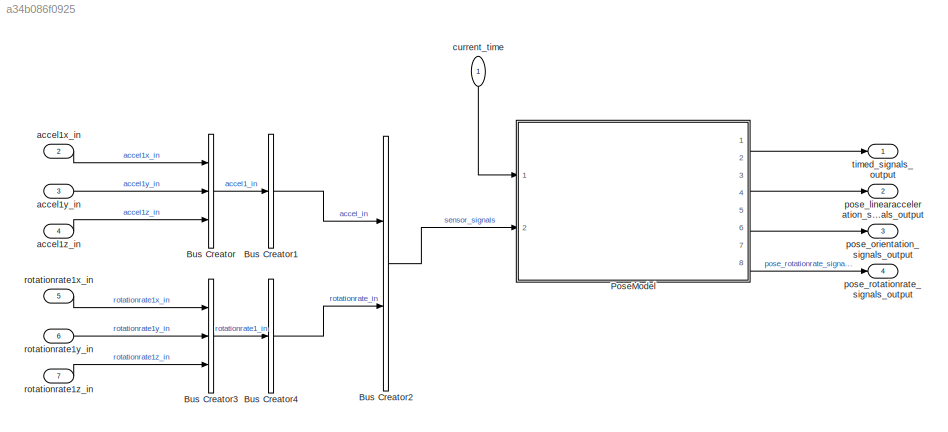
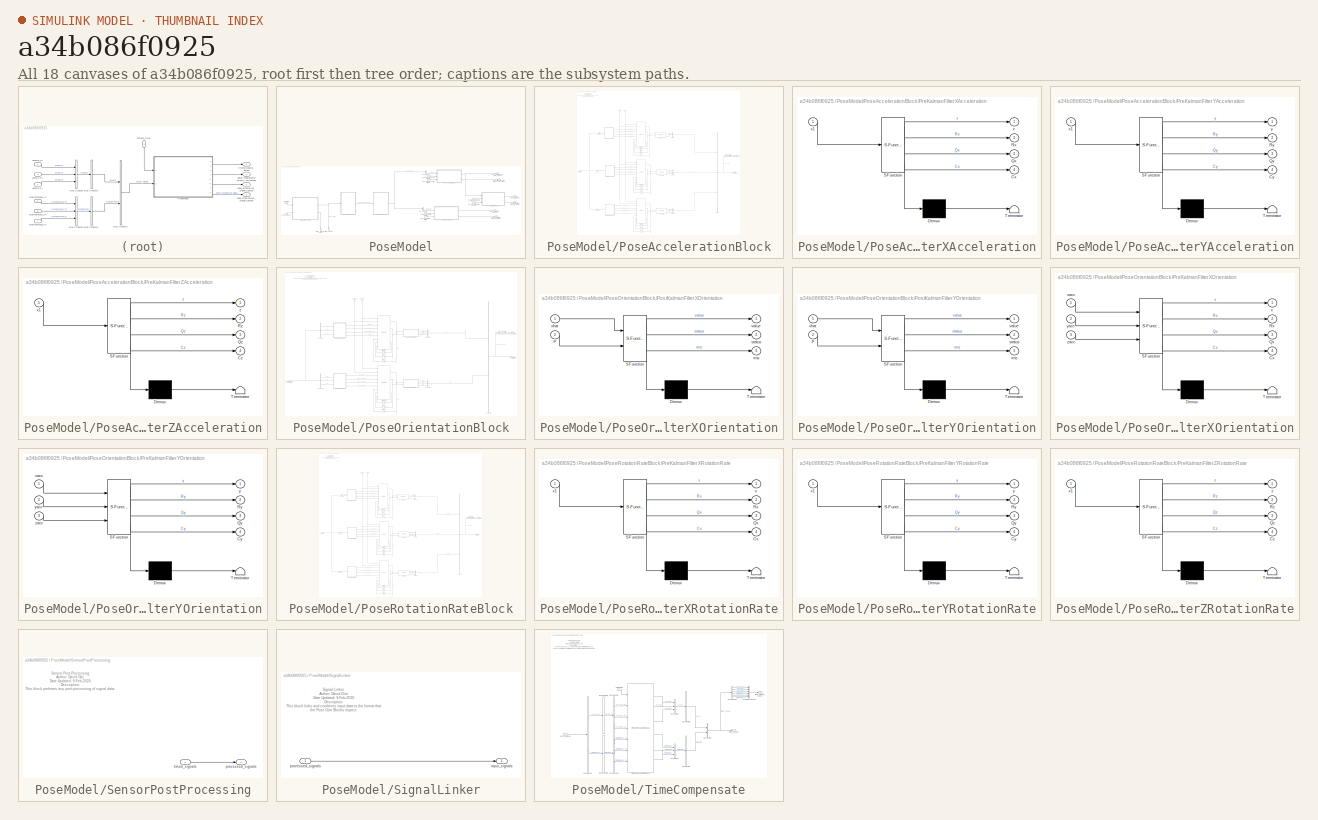
[diagram: thumbnail index - all 18 canvases of the model, root first then tree order]
MODEL slx_a34b086f0925
KIND model
CONFIG AbsTol = auto
CONFIG EnableMultiTasking = off
CONFIG FixedStep = auto
CONFIG MaxStep = auto
CONFIG MinStep = auto
CONFIG RelTol = 1e-3
CONFIG SampleTimeConstraint = Unconstrained
CONFIG Solver = FixedStepDiscrete
CONFIG SolverName = FixedStepDiscrete
CONFIG StartTime = 0.0
CONFIG StopTime = 10.0
BLOCK [BusCreator] Bus Creator
  DisplayOption = bar
  InheritFromInputs = on
  Inputs = 3
  Ports = [3, 1]
BLOCK [BusCreator] Bus Creator1
  DisplayOption = bar
  InheritFromInputs = on
  Inputs = 1
  Ports = [1, 1]
BLOCK [BusCreator] Bus Creator2
  DisplayOption = bar
  InheritFromInputs = on
  Inputs = 2
  Ports = [2, 1]
BLOCK [BusCreator] Bus Creator3
  DisplayOption = bar
  InheritFromInputs = on
  Inputs = 3
  Ports = [3, 1]
BLOCK [BusCreator] Bus Creator4
  DisplayOption = bar
  InheritFromInputs = on
  Inputs = 1
  Ports = [1, 1]
BLOCK [SubSystem] PoseModel
  AncestorBlock = posemodel/PoseModel
  Ports = [2, 8]
  RequestExecContextInheritance = off
BLOCK [BusSelector] PoseModel/Bus Selector
  OutputAsBus = off
  OutputSignals = accel
  Ports = [1, 1]
BLOCK [BusSelector] PoseModel/Bus Selector1
  OutputAsBus = off
  OutputSignals = rotationrate
  Ports = [1, 1]
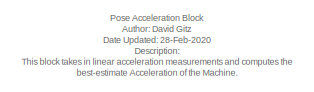
[diagram: PoseModel/PoseAccelerationBlock - part 1/10, top left region]
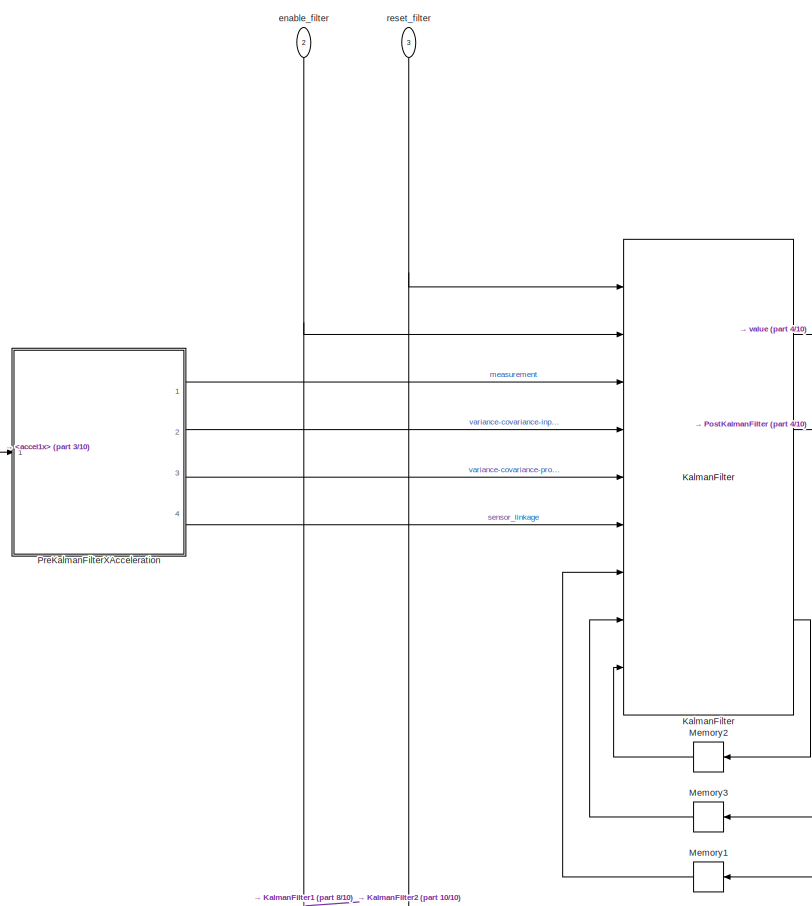
[diagram: PoseModel/PoseAccelerationBlock - part 2/10, top left region]
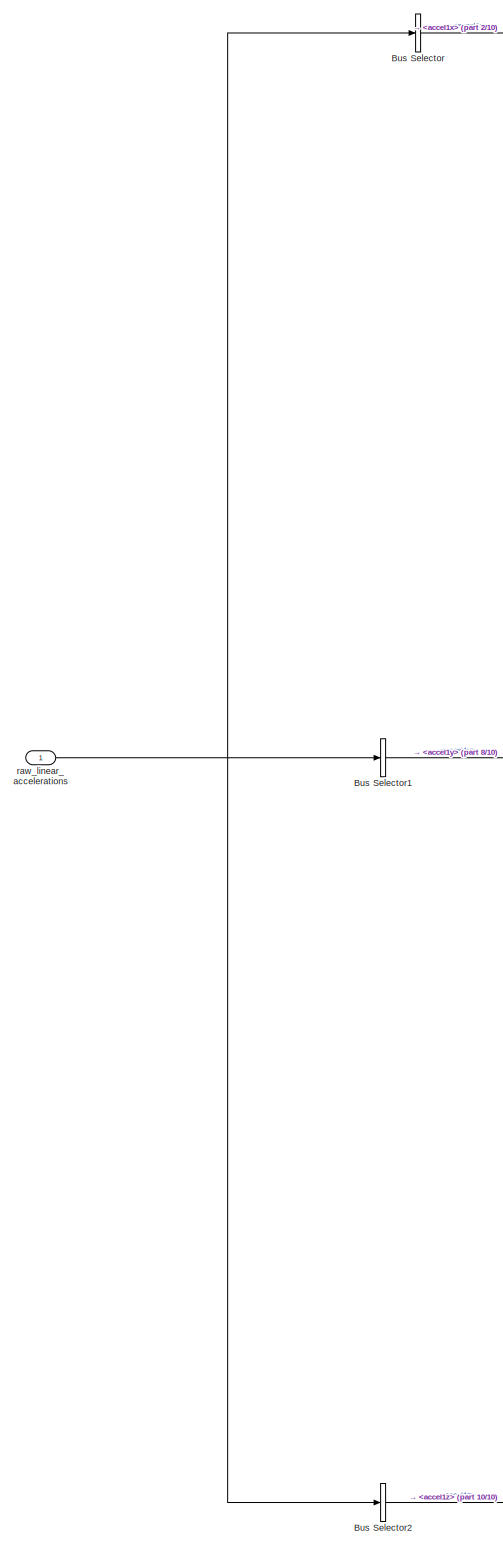
[diagram: PoseModel/PoseAccelerationBlock - part 3/10, middle left region]
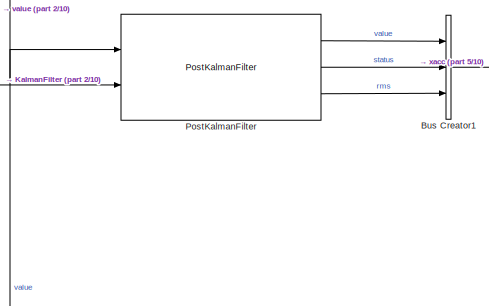
[diagram: PoseModel/PoseAccelerationBlock - part 4/10, central region]
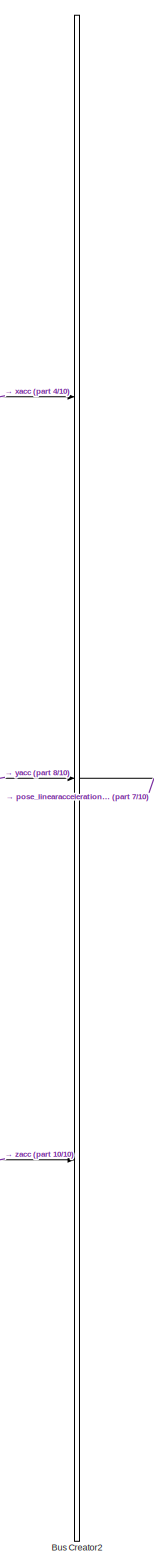
[diagram: PoseModel/PoseAccelerationBlock - part 5/10, middle right region]
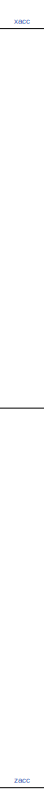
[diagram: PoseModel/PoseAccelerationBlock - part 6/10, middle right region]
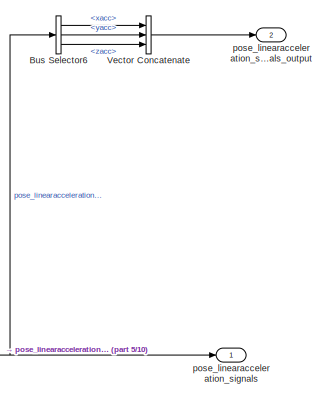
[diagram: PoseModel/PoseAccelerationBlock - part 7/10, middle right region]
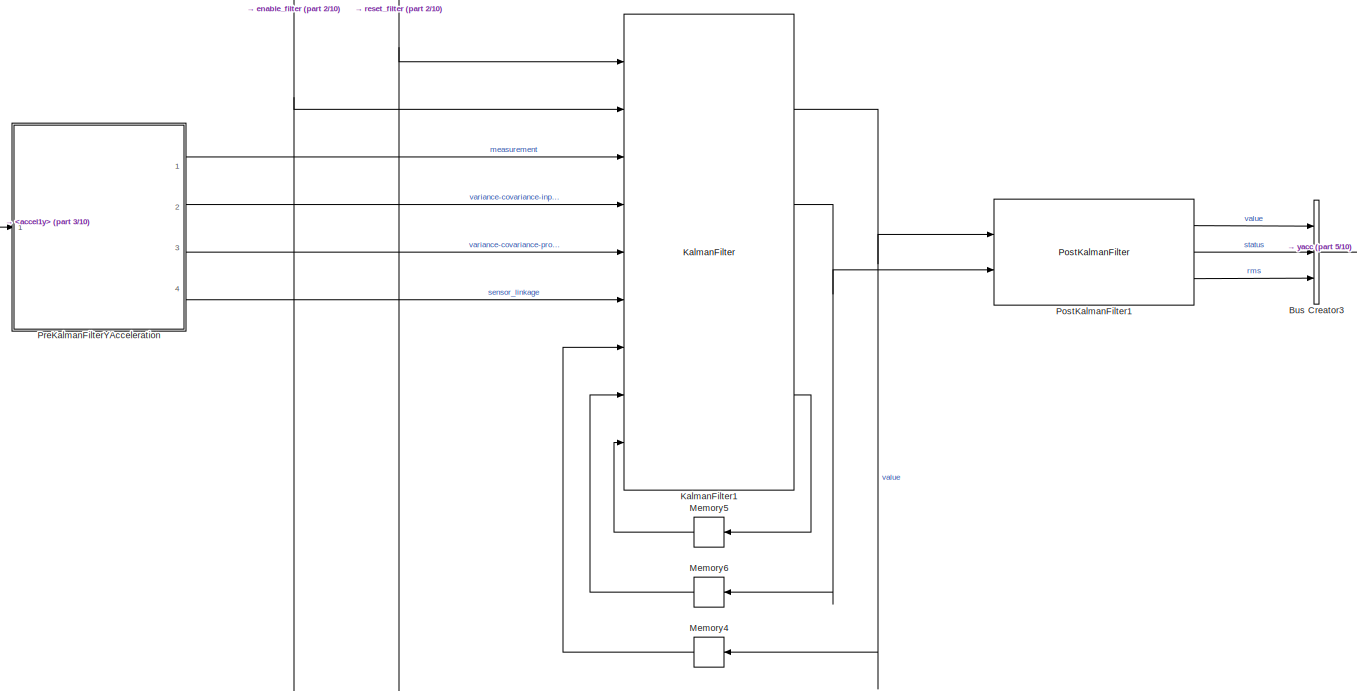
[diagram: PoseModel/PoseAccelerationBlock - part 8/10, central region]
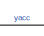
[diagram: PoseModel/PoseAccelerationBlock - part 9/10, middle right region]
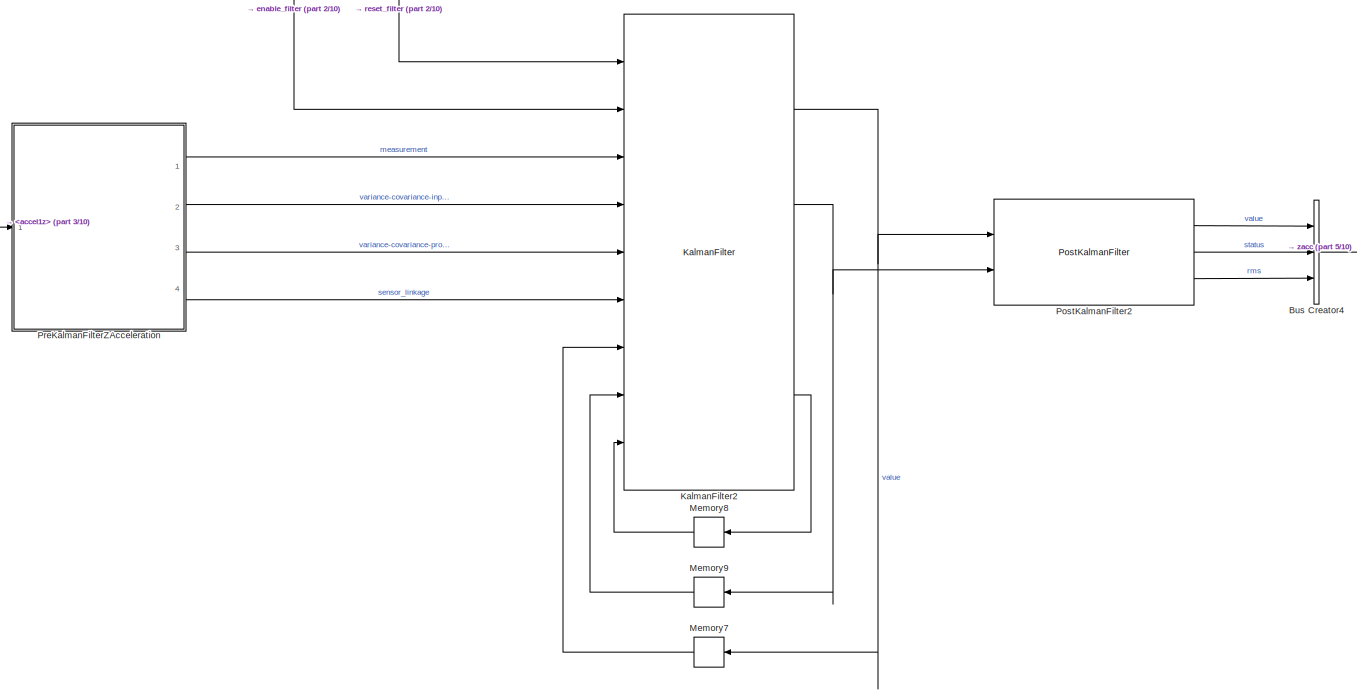
[diagram: PoseModel/PoseAccelerationBlock - part 10/10, bottom center region]
BLOCK [SubSystem] PoseModel/PoseAccelerationBlock
  Ports = [3, 2]
  RequestExecContextInheritance = off
BLOCK [BusCreator] PoseModel/PoseAccelerationBlock/Bus Creator1
  DisplayOption = bar
  InheritFromInputs = on
  Inputs = 3
  NonVirtualBus = on
  OutDataTypeStr = Bus: OutputSignalObject
  Ports = [3, 1]
BLOCK [BusCreator] PoseModel/PoseAccelerationBlock/Bus Creator2
  DisplayOption = bar
  InheritFromInputs = on
  Inputs = 3
  Ports = [3, 1]
BLOCK [BusCreator] PoseModel/PoseAccelerationBlock/Bus Creator3
  DisplayOption = bar
  InheritFromInputs = on
  Inputs = 3
  NonVirtualBus = on
  OutDataTypeStr = Bus: OutputSignalObject
  Ports = [3, 1]
BLOCK [BusCreator] PoseModel/PoseAccelerationBlock/Bus Creator4
  DisplayOption = bar
  InheritFromInputs = on
  Inputs = 3
  NonVirtualBus = on
  OutDataTypeStr = Bus: OutputSignalObject
  Ports = [3, 1]
BLOCK [BusSelector] PoseModel/PoseAccelerationBlock/Bus Selector
  OutputAsBus = off
  OutputSignals = accel1.accel1x
  Ports = [1, 1]
BLOCK [BusSelector] PoseModel/PoseAccelerationBlock/Bus Selector1
  OutputAsBus = off
  OutputSignals = accel1.accel1y
  Ports = [1, 1]
BLOCK [BusSelector] PoseModel/PoseAccelerationBlock/Bus Selector2
  OutputAsBus = off
  OutputSignals = accel1.accel1z
  Ports = [1, 1]
BLOCK [BusSelector] PoseModel/PoseAccelerationBlock/Bus Selector6
  OutputAsBus = off
  OutputSignals = xacc,yacc,zacc
  Ports = [1, 3]
BLOCK [Reference] PoseModel/PoseAccelerationBlock/KalmanFilter  REF=posefilter/KalmanFilter  (lib defined in slx_956faf5b2c37)
  Ports = [9, 4]
  SourceBlock = posefilter/KalmanFilter
  SourceProductName = Pose Filter Library
  SourceType = SubSystem
BLOCK [Reference] PoseModel/PoseAccelerationBlock/KalmanFilter1  REF=posefilter/KalmanFilter  (lib defined in slx_956faf5b2c37)
  Ports = [9, 4]
  SourceBlock = posefilter/KalmanFilter
  SourceProductName = Pose Filter Library
  SourceType = SubSystem
BLOCK [Reference] PoseModel/PoseAccelerationBlock/KalmanFilter2  REF=posefilter/KalmanFilter  (lib defined in slx_956faf5b2c37)
  Ports = [9, 4]
  SourceBlock = posefilter/KalmanFilter
  SourceProductName = Pose Filter Library
  SourceType = SubSystem
BLOCK [Memory] PoseModel/PoseAccelerationBlock/Memory1
BLOCK [Memory] PoseModel/PoseAccelerationBlock/Memory2
BLOCK [Memory] PoseModel/PoseAccelerationBlock/Memory3
BLOCK [Memory] PoseModel/PoseAccelerationBlock/Memory4
BLOCK [Memory] PoseModel/PoseAccelerationBlock/Memory5
BLOCK [Memory] PoseModel/PoseAccelerationBlock/Memory6
BLOCK [Memory] PoseModel/PoseAccelerationBlock/Memory7
BLOCK [Memory] PoseModel/PoseAccelerationBlock/Memory8
BLOCK [Memory] PoseModel/PoseAccelerationBlock/Memory9
BLOCK [Reference] PoseModel/PoseAccelerationBlock/PostKalmanFilter  REF=posefilter/PostKalmanFilter  (lib defined in slx_956faf5b2c37)
  Ports = [2, 3]
  SourceBlock = posefilter/PostKalmanFilter
  SourceProductName = Pose Filter Library
  SourceType = SubSystem
BLOCK [Reference] PoseModel/PoseAccelerationBlock/PostKalmanFilter1  REF=posefilter/PostKalmanFilter  (lib defined in slx_956faf5b2c37)
  Ports = [2, 3]
  SourceBlock = posefilter/PostKalmanFilter
  SourceProductName = Pose Filter Library
  SourceType = SubSystem
BLOCK [Reference] PoseModel/PoseAccelerationBlock/PostKalmanFilter2  REF=posefilter/PostKalmanFilter  (lib defined in slx_956faf5b2c37)
  Ports = [2, 3]
  SourceBlock = posefilter/PostKalmanFilter
  SourceProductName = Pose Filter Library
  SourceType = SubSystem
BLOCK [SubSystem] PoseModel/PoseAccelerationBlock/PreKalmanFilterXAcceleration
  ErrorFcn = Stateflow.Translate.translate
  PermitHierarchicalResolution = ExplicitOnly
  Ports = [1, 4]
  RequestExecContextInheritance = off
  SFBlockType = MATLAB Function
  TreatAsAtomicUnit = on
BLOCK [Demux] PoseModel/PoseAccelerationBlock/PreKalmanFilterXAcceleration/ Demux 
  Outputs = 1
  Ports = [1, 1]
BLOCK [S-Function] PoseModel/PoseAccelerationBlock/PreKalmanFilterXAcceleration/ SFunction 
  EnableBusSupport = on
  FunctionName = sf_sfun
  PortCounts = [1 5]
  Ports = [1, 5]
  SFcnIsStateOwnerBlock = off
  SFunctionDeploymentMode = off
  Tag = Stateflow S-Function 3
BLOCK [Terminator] PoseModel/PoseAccelerationBlock/PreKalmanFilterXAcceleration/ Terminator 
BLOCK [Outport] PoseModel/PoseAccelerationBlock/PreKalmanFilterXAcceleration/Cx
  IconDisplay = Port number
  Port = 4
BLOCK [Outport] PoseModel/PoseAccelerationBlock/PreKalmanFilterXAcceleration/Qx
  IconDisplay = Port number
  Port = 3
BLOCK [Outport] PoseModel/PoseAccelerationBlock/PreKalmanFilterXAcceleration/Rx
  IconDisplay = Port number
  Port = 2
BLOCK [Outport] PoseModel/PoseAccelerationBlock/PreKalmanFilterXAcceleration/x
  IconDisplay = Port number
BLOCK [Inport] PoseModel/PoseAccelerationBlock/PreKalmanFilterXAcceleration/x1
  IconDisplay = Port number
BLOCK [SubSystem] PoseModel/PoseAccelerationBlock/PreKalmanFilterYAcceleration
  ErrorFcn = Stateflow.Translate.translate
  PermitHierarchicalResolution = ExplicitOnly
  Ports = [1, 4]
  RequestExecContextInheritance = off
  SFBlockType = MATLAB Function
  TreatAsAtomicUnit = on
BLOCK [Demux] PoseModel/PoseAccelerationBlock/PreKalmanFilterYAcceleration/ Demux 
  Outputs = 1
  Ports = [1, 1]
BLOCK [S-Function] PoseModel/PoseAccelerationBlock/PreKalmanFilterYAcceleration/ SFunction 
  EnableBusSupport = on
  FunctionName = sf_sfun
  PortCounts = [1 5]
  Ports = [1, 5]
  SFcnIsStateOwnerBlock = off
  SFunctionDeploymentMode = off
  Tag = Stateflow S-Function 4
BLOCK [Terminator] PoseModel/PoseAccelerationBlock/PreKalmanFilterYAcceleration/ Terminator 
BLOCK [Outport] PoseModel/PoseAccelerationBlock/PreKalmanFilterYAcceleration/Cy
  IconDisplay = Port number
  Port = 4
BLOCK [Outport] PoseModel/PoseAccelerationBlock/PreKalmanFilterYAcceleration/Qy
  IconDisplay = Port number
  Port = 3
BLOCK [Outport] PoseModel/PoseAccelerationBlock/PreKalmanFilterYAcceleration/Ry
  IconDisplay = Port number
  Port = 2
BLOCK [Inport] PoseModel/PoseAccelerationBlock/PreKalmanFilterYAcceleration/x1
  IconDisplay = Port number
BLOCK [Outport] PoseModel/PoseAccelerationBlock/PreKalmanFilterYAcceleration/y
  IconDisplay = Port number
BLOCK [SubSystem] PoseModel/PoseAccelerationBlock/PreKalmanFilterZAcceleration
  ErrorFcn = Stateflow.Translate.translate
  PermitHierarchicalResolution = ExplicitOnly
  Ports = [1, 4]
  RequestExecContextInheritance = off
  SFBlockType = MATLAB Function
  TreatAsAtomicUnit = on
BLOCK [Demux] PoseModel/PoseAccelerationBlock/PreKalmanFilterZAcceleration/ Demux 
  Outputs = 1
  Ports = [1, 1]
BLOCK [S-Function] PoseModel/PoseAccelerationBlock/PreKalmanFilterZAcceleration/ SFunction 
  EnableBusSupport = on
  FunctionName = sf_sfun
  PortCounts = [1 5]
  Ports = [1, 5]
  SFcnIsStateOwnerBlock = off
  SFunctionDeploymentMode = off
  Tag = Stateflow S-Function 5
BLOCK [Terminator] PoseModel/PoseAccelerationBlock/PreKalmanFilterZAcceleration/ Terminator 
BLOCK [Outport] PoseModel/PoseAccelerationBlock/PreKalmanFilterZAcceleration/Cz
  IconDisplay = Port number
  Port = 4
BLOCK [Outport] PoseModel/PoseAccelerationBlock/PreKalmanFilterZAcceleration/Qz
  IconDisplay = Port number
  Port = 3
BLOCK [Outport] PoseModel/PoseAccelerationBlock/PreKalmanFilterZAcceleration/Rz
  IconDisplay = Port number
  Port = 2
BLOCK [Inport] PoseModel/PoseAccelerationBlock/PreKalmanFilterZAcceleration/x1
  IconDisplay = Port number
BLOCK [Outport] PoseModel/PoseAccelerationBlock/PreKalmanFilterZAcceleration/z
  IconDisplay = Port number
BLOCK [Concatenate] PoseModel/PoseAccelerationBlock/Vector Concatenate
  NumInputs = 3
  Ports = [3, 1]
BLOCK [Inport] PoseModel/PoseAccelerationBlock/enable_filter
  IconDisplay = Port number
  Port = 2
BLOCK [Outport] PoseModel/PoseAccelerationBlock/pose_linearacceleration_signals
  IconDisplay = Port number
BLOCK [Outport] PoseModel/PoseAccelerationBlock/pose_linearacceleration_signals_output
  IconDisplay = Port number
  Port = 2
BLOCK [Inport] PoseModel/PoseAccelerationBlock/raw_linear_accelerations
  IconDisplay = Port number
BLOCK [Inport] PoseModel/PoseAccelerationBlock/reset_filter
  IconDisplay = Port number
  Port = 3
BLOCK [SubSystem] PoseModel/PoseOrientationBlock
  Ports = [3, 2]
  RequestExecContextInheritance = off
BLOCK [BusCreator] PoseModel/PoseOrientationBlock/Bus Creator1
  DisplayOption = bar
  InheritFromInputs = on
  Inputs = 3
  NonVirtualBus = on
  OutDataTypeStr = Bus: OutputSignalObject
  Ports = [3, 1]
BLOCK [BusCreator] PoseModel/PoseOrientationBlock/Bus Creator2
  DisplayOption = bar
  InheritFromInputs = on
  Inputs = 2
  Ports = [2, 1]
BLOCK [BusCreator] PoseModel/PoseOrientationBlock/Bus Creator3
  DisplayOption = bar
  InheritFromInputs = on
  Inputs = 3
  NonVirtualBus = on
  OutDataTypeStr = Bus: OutputSignalObject
  Ports = [3, 1]
BLOCK [BusSelector] PoseModel/PoseOrientationBlock/Bus Selector
  OutputAsBus = off
  OutputSignals = xacc,yacc,zacc
  Ports = [1, 3]
BLOCK [BusSelector] PoseModel/PoseOrientationBlock/Bus Selector1
  OutputAsBus = off
  OutputSignals = xacc,yacc,zacc
  Ports = [1, 3]
BLOCK [BusSelector] PoseModel/PoseOrientationBlock/Bus Selector6
  OutputAsBus = off
  OutputSignals = roll,pitch
  Ports = [1, 2]
BLOCK [Reference] PoseModel/PoseOrientationBlock/KalmanFilter  REF=posefilter/KalmanFilter  (lib defined in slx_956faf5b2c37)
  Ports = [9, 4]
  SourceBlock = posefilter/KalmanFilter
  SourceProductName = Pose Filter Library
  SourceType = SubSystem
BLOCK [Reference] PoseModel/PoseOrientationBlock/KalmanFilter1  REF=posefilter/KalmanFilter  (lib defined in slx_956faf5b2c37)
  Ports = [9, 4]
  SourceBlock = posefilter/KalmanFilter
  SourceProductName = Pose Filter Library
  SourceType = SubSystem
BLOCK [Memory] PoseModel/PoseOrientationBlock/Memory1
BLOCK [Memory] PoseModel/PoseOrientationBlock/Memory2
BLOCK [Memory] PoseModel/PoseOrientationBlock/Memory3
BLOCK [Memory] PoseModel/PoseOrientationBlock/Memory4
BLOCK [Memory] PoseModel/PoseOrientationBlock/Memory5
BLOCK [Memory] PoseModel/PoseOrientationBlock/Memory6
BLOCK [SubSystem] PoseModel/PoseOrientationBlock/PostKalmanFilterXOrientation
  ErrorFcn = Stateflow.Translate.translate
  PermitHierarchicalResolution = ExplicitOnly
  Ports = [2, 3]
  RequestExecContextInheritance = off
  SFBlockType = MATLAB Function
  TreatAsAtomicUnit = on
BLOCK [Demux] PoseModel/PoseOrientationBlock/PostKalmanFilterXOrientation/ Demux 
  Outputs = 1
  Ports = [1, 1]
BLOCK [S-Function] PoseModel/PoseOrientationBlock/PostKalmanFilterXOrientation/ SFunction 
  EnableBusSupport = on
  FunctionName = sf_sfun
  PortCounts = [2 4]
  Ports = [2, 4]
  SFcnIsStateOwnerBlock = off
  SFunctionDeploymentMode = off
  Tag = Stateflow S-Function 7
BLOCK [Terminator] PoseModel/PoseOrientationBlock/PostKalmanFilterXOrientation/ Terminator 
BLOCK [Inport] PoseModel/PoseOrientationBlock/PostKalmanFilterXOrientation/P
  IconDisplay = Port number
  Port = 2
BLOCK [Outport] PoseModel/PoseOrientationBlock/PostKalmanFilterXOrientation/rms
  IconDisplay = Port number
  Port = 3
BLOCK [Outport] PoseModel/PoseOrientationBlock/PostKalmanFilterXOrientation/status
  IconDisplay = Port number
  Port = 2
BLOCK [Outport] PoseModel/PoseOrientationBlock/PostKalmanFilterXOrientation/value
  IconDisplay = Port number
  VectorParamsAs1DForOutWhenUnconnected = off
BLOCK [Inport] PoseModel/PoseOrientationBlock/PostKalmanFilterXOrientation/xhat
  IconDisplay = Port number
BLOCK [SubSystem] PoseModel/PoseOrientationBlock/PostKalmanFilterYOrientation
  ErrorFcn = Stateflow.Translate.translate
  PermitHierarchicalResolution = ExplicitOnly
  Ports = [2, 3]
  RequestExecContextInheritance = off
  SFBlockType = MATLAB Function
  TreatAsAtomicUnit = on
BLOCK [Demux] PoseModel/PoseOrientationBlock/PostKalmanFilterYOrientation/ Demux 
  Outputs = 1
  Ports = [1, 1]
BLOCK [S-Function] PoseModel/PoseOrientationBlock/PostKalmanFilterYOrientation/ SFunction 
  EnableBusSupport = on
  FunctionName = sf_sfun
  PortCounts = [2 4]
  Ports = [2, 4]
  SFcnIsStateOwnerBlock = off
  SFunctionDeploymentMode = off
  Tag = Stateflow S-Function 8
BLOCK [Terminator] PoseModel/PoseOrientationBlock/PostKalmanFilterYOrientation/ Terminator 
BLOCK [Inport] PoseModel/PoseOrientationBlock/PostKalmanFilterYOrientation/P
  IconDisplay = Port number
  Port = 2
BLOCK [Outport] PoseModel/PoseOrientationBlock/PostKalmanFilterYOrientation/rms
  IconDisplay = Port number
  Port = 3
BLOCK [Outport] PoseModel/PoseOrientationBlock/PostKalmanFilterYOrientation/status
  IconDisplay = Port number
  Port = 2
BLOCK [Outport] PoseModel/PoseOrientationBlock/PostKalmanFilterYOrientation/value
  IconDisplay = Port number
  VectorParamsAs1DForOutWhenUnconnected = off
BLOCK [Inport] PoseModel/PoseOrientationBlock/PostKalmanFilterYOrientation/xhat
  IconDisplay = Port number
BLOCK [SubSystem] PoseModel/PoseOrientationBlock/PreKalmanFilterXOrientation
  ErrorFcn = Stateflow.Translate.translate
  PermitHierarchicalResolution = ExplicitOnly
  Ports = [3, 4]
  RequestExecContextInheritance = off
  SFBlockType = MATLAB Function
  TreatAsAtomicUnit = on
BLOCK [Demux] PoseModel/PoseOrientationBlock/PreKalmanFilterXOrientation/ Demux 
  Outputs = 1
  Ports = [1, 1]
BLOCK [S-Function] PoseModel/PoseOrientationBlock/PreKalmanFilterXOrientation/ SFunction 
  EnableBusSupport = on
  FunctionName = sf_sfun
  PortCounts = [3 5]
  Ports = [3, 5]
  SFcnIsStateOwnerBlock = off
  SFunctionDeploymentMode = off
  Tag = Stateflow S-Function 6
BLOCK [Terminator] PoseModel/PoseOrientationBlock/PreKalmanFilterXOrientation/ Terminator 
BLOCK [Outport] PoseModel/PoseOrientationBlock/PreKalmanFilterXOrientation/Cx
  IconDisplay = Port number
  Port = 4
BLOCK [Outport] PoseModel/PoseOrientationBlock/PreKalmanFilterXOrientation/Qx
  IconDisplay = Port number
  Port = 3
BLOCK [Outport] PoseModel/PoseOrientationBlock/PreKalmanFilterXOrientation/Rx
  IconDisplay = Port number
  Port = 2
BLOCK [Outport] PoseModel/PoseOrientationBlock/PreKalmanFilterXOrientation/x
  IconDisplay = Port number
BLOCK [Inport] PoseModel/PoseOrientationBlock/PreKalmanFilterXOrientation/xacc
  IconDisplay = Port number
BLOCK [Inport] PoseModel/PoseOrientationBlock/PreKalmanFilterXOrientation/yacc
  IconDisplay = Port number
  Port = 2
BLOCK [Inport] PoseModel/PoseOrientationBlock/PreKalmanFilterXOrientation/zacc
  IconDisplay = Port number
  Port = 3
BLOCK [SubSystem] PoseModel/PoseOrientationBlock/PreKalmanFilterYOrientation
  ErrorFcn = Stateflow.Translate.translate
  PermitHierarchicalResolution = ExplicitOnly
  Ports = [3, 4]
  RequestExecContextInheritance = off
  SFBlockType = MATLAB Function
  TreatAsAtomicUnit = on
BLOCK [Demux] PoseModel/PoseOrientationBlock/PreKalmanFilterYOrientation/ Demux 
  Outputs = 1
  Ports = [1, 1]
BLOCK [S-Function] PoseModel/PoseOrientationBlock/PreKalmanFilterYOrientation/ SFunction 
  EnableBusSupport = on
  FunctionName = sf_sfun
  PortCounts = [3 5]
  Ports = [3, 5]
  SFcnIsStateOwnerBlock = off
  SFunctionDeploymentMode = off
  Tag = Stateflow S-Function 9
BLOCK [Terminator] PoseModel/PoseOrientationBlock/PreKalmanFilterYOrientation/ Terminator 
BLOCK [Outport] PoseModel/PoseOrientationBlock/PreKalmanFilterYOrientation/Cy
  IconDisplay = Port number
  Port = 4
BLOCK [Outport] PoseModel/PoseOrientationBlock/PreKalmanFilterYOrientation/Qy
  IconDisplay = Port number
  Port = 3
BLOCK [Outport] PoseModel/PoseOrientationBlock/PreKalmanFilterYOrientation/Ry
  IconDisplay = Port number
  Port = 2
BLOCK [Inport] PoseModel/PoseOrientationBlock/PreKalmanFilterYOrientation/xacc
  IconDisplay = Port number
BLOCK [Outport] PoseModel/PoseOrientationBlock/PreKalmanFilterYOrientation/y
  IconDisplay = Port number
BLOCK [Inport] PoseModel/PoseOrientationBlock/PreKalmanFilterYOrientation/yacc
  IconDisplay = Port number
  Port = 2
BLOCK [Inport] PoseModel/PoseOrientationBlock/PreKalmanFilterYOrientation/zacc
  IconDisplay = Port number
  Port = 3
BLOCK [Concatenate] PoseModel/PoseOrientationBlock/Vector Concatenate
  Ports = [2, 1]
BLOCK [Inport] PoseModel/PoseOrientationBlock/computed_linear_accelerations
  IconDisplay = Port number
BLOCK [Inport] PoseModel/PoseOrientationBlock/enable_filter
  IconDisplay = Port number
  Port = 2
BLOCK [Outport] PoseModel/PoseOrientationBlock/pose_orientation_signals
  IconDisplay = Port number
BLOCK [Outport] PoseModel/PoseOrientationBlock/pose_orientation_signals_output
  IconDisplay = Port number
  Port = 2
BLOCK [Inport] PoseModel/PoseOrientationBlock/reset_filter
  IconDisplay = Port number
  Port = 3
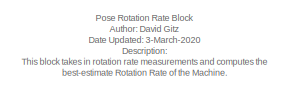
[diagram: PoseModel/PoseRotationRateBlock - part 1/9, top left region]
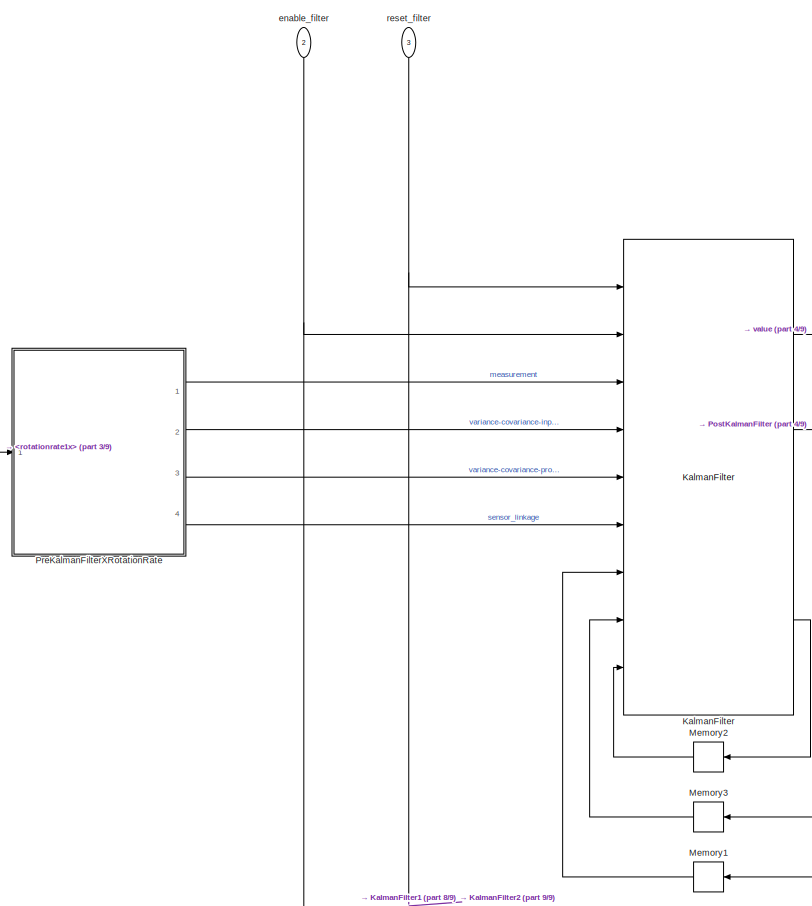
[diagram: PoseModel/PoseRotationRateBlock - part 2/9, top left region]
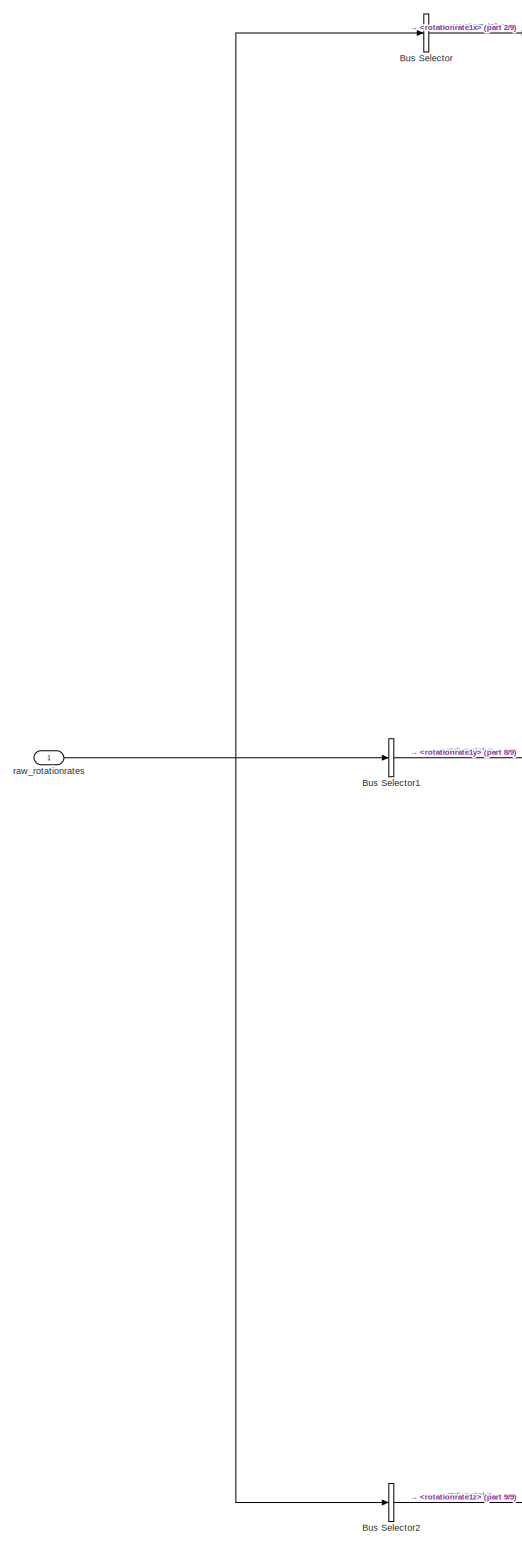
[diagram: PoseModel/PoseRotationRateBlock - part 3/9, middle left region]
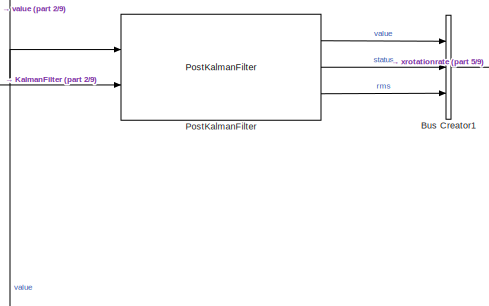
[diagram: PoseModel/PoseRotationRateBlock - part 4/9, central region]
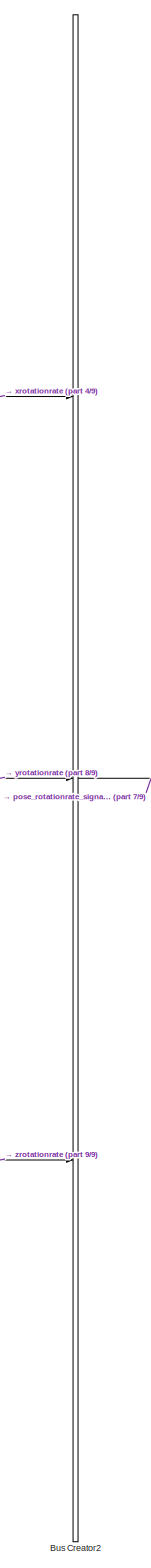
[diagram: PoseModel/PoseRotationRateBlock - part 5/9, middle right region]
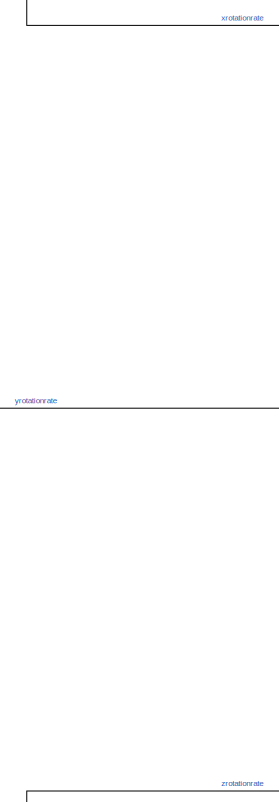
[diagram: PoseModel/PoseRotationRateBlock - part 6/9, middle right region]
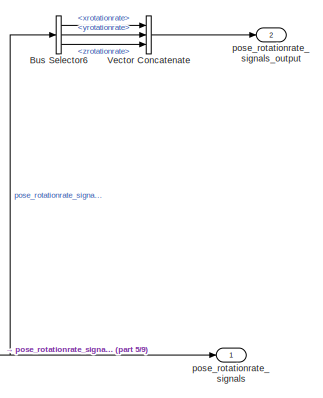
[diagram: PoseModel/PoseRotationRateBlock - part 7/9, middle right region]
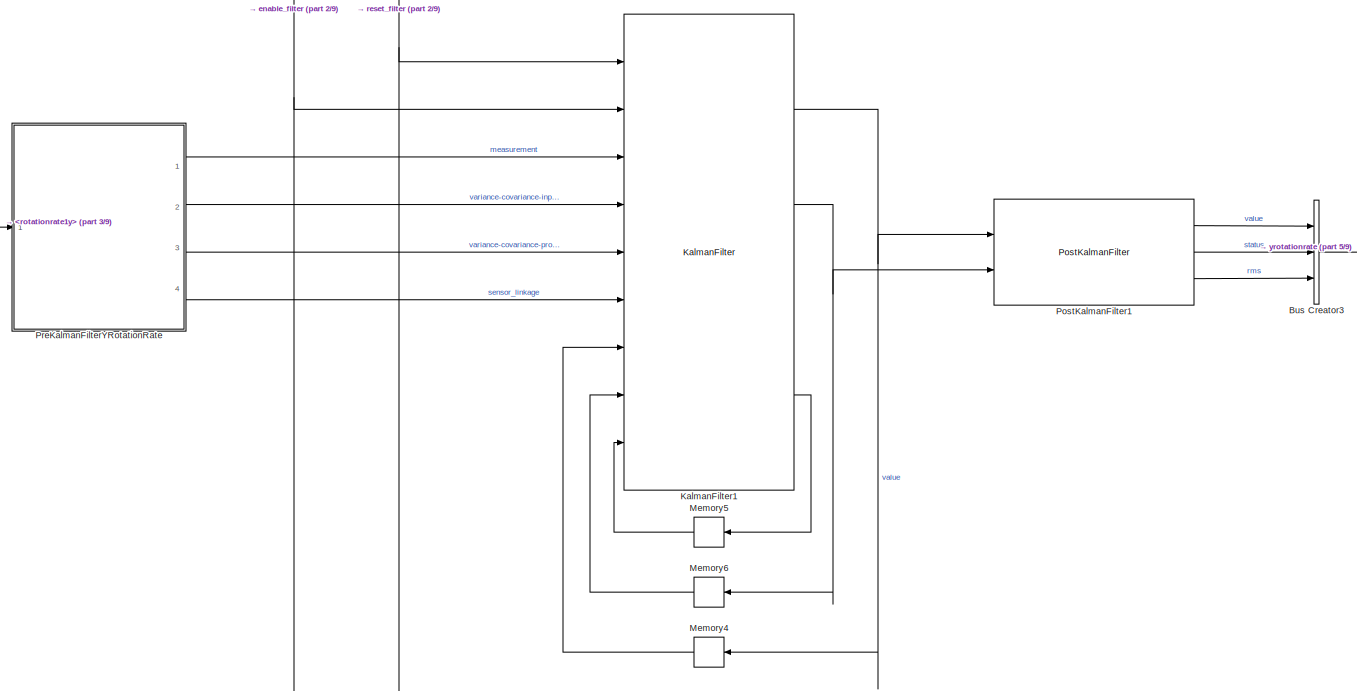
[diagram: PoseModel/PoseRotationRateBlock - part 8/9, central region]
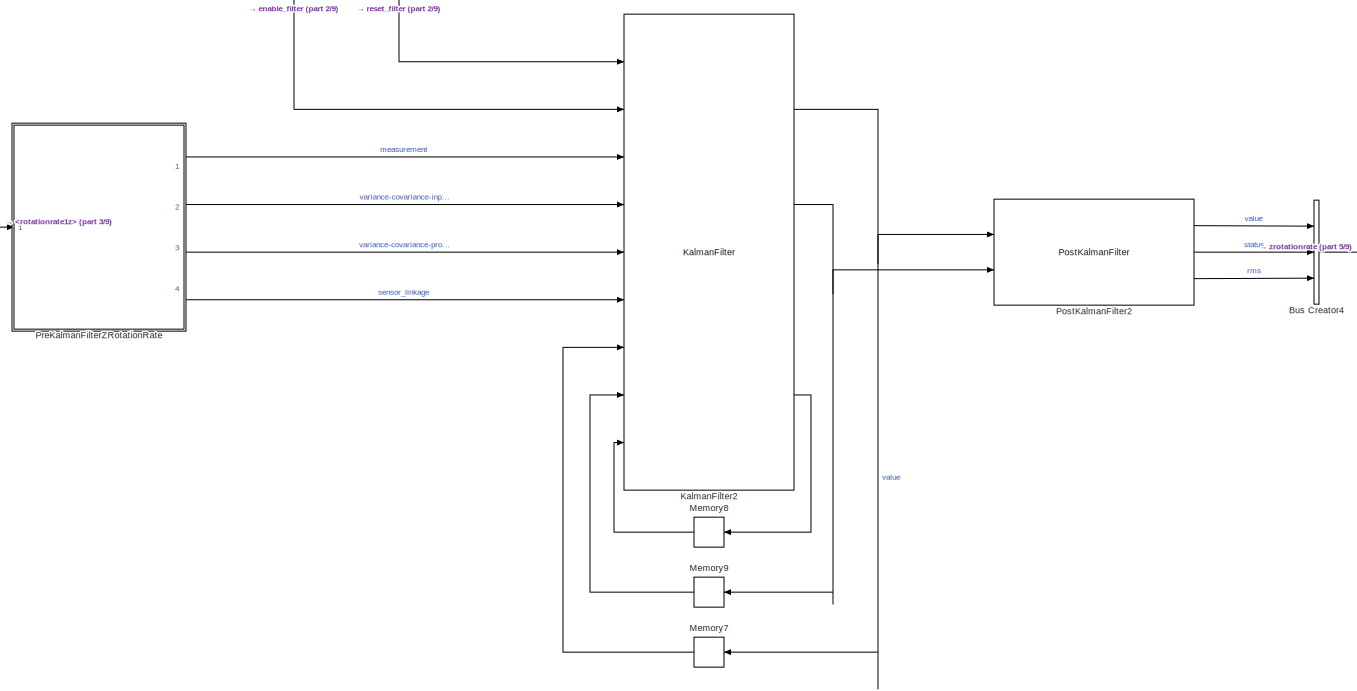
[diagram: PoseModel/PoseRotationRateBlock - part 9/9, bottom center region]
BLOCK [SubSystem] PoseModel/PoseRotationRateBlock
  Ports = [3, 2]
  RequestExecContextInheritance = off
BLOCK [BusCreator] PoseModel/PoseRotationRateBlock/Bus Creator1
  DisplayOption = bar
  InheritFromInputs = on
  Inputs = 3
  NonVirtualBus = on
  OutDataTypeStr = Bus: OutputSignalObject
  Ports = [3, 1]
BLOCK [BusCreator] PoseModel/PoseRotationRateBlock/Bus Creator2
  DisplayOption = bar
  InheritFromInputs = on
  Inputs = 3
  Ports = [3, 1]
BLOCK [BusCreator] PoseModel/PoseRotationRateBlock/Bus Creator3
  DisplayOption = bar
  InheritFromInputs = on
  Inputs = 3
  NonVirtualBus = on
  OutDataTypeStr = Bus: OutputSignalObject
  Ports = [3, 1]
BLOCK [BusCreator] PoseModel/PoseRotationRateBlock/Bus Creator4
  DisplayOption = bar
  InheritFromInputs = on
  Inputs = 3
  NonVirtualBus = on
  OutDataTypeStr = Bus: OutputSignalObject
  Ports = [3, 1]
BLOCK [BusSelector] PoseModel/PoseRotationRateBlock/Bus Selector
  OutputAsBus = off
  OutputSignals = rotationrate1.rotationrate1x
  Ports = [1, 1]
BLOCK [BusSelector] PoseModel/PoseRotationRateBlock/Bus Selector1
  OutputAsBus = off
  OutputSignals = rotationrate1.rotationrate1y
  Ports = [1, 1]
BLOCK [BusSelector] PoseModel/PoseRotationRateBlock/Bus Selector2
  OutputAsBus = off
  OutputSignals = rotationrate1.rotationrate1z
  Ports = [1, 1]
BLOCK [BusSelector] PoseModel/PoseRotationRateBlock/Bus Selector6
  OutputAsBus = off
  OutputSignals = xrotationrate,yrotationrate,zrotationrate
  Ports = [1, 3]
BLOCK [Reference] PoseModel/PoseRotationRateBlock/KalmanFilter  REF=posefilter/KalmanFilter  (lib defined in slx_956faf5b2c37)
  Ports = [9, 4]
  SourceBlock = posefilter/KalmanFilter
  SourceProductName = Pose Filter Library
  SourceType = SubSystem
BLOCK [Reference] PoseModel/PoseRotationRateBlock/KalmanFilter1  REF=posefilter/KalmanFilter  (lib defined in slx_956faf5b2c37)
  Ports = [9, 4]
  SourceBlock = posefilter/KalmanFilter
  SourceProductName = Pose Filter Library
  SourceType = SubSystem
BLOCK [Reference] PoseModel/PoseRotationRateBlock/KalmanFilter2  REF=posefilter/KalmanFilter  (lib defined in slx_956faf5b2c37)
  Ports = [9, 4]
  SourceBlock = posefilter/KalmanFilter
  SourceProductName = Pose Filter Library
  SourceType = SubSystem
BLOCK [Memory] PoseModel/PoseRotationRateBlock/Memory1
BLOCK [Memory] PoseModel/PoseRotationRateBlock/Memory2
BLOCK [Memory] PoseModel/PoseRotationRateBlock/Memory3
BLOCK [Memory] PoseModel/PoseRotationRateBlock/Memory4
BLOCK [Memory] PoseModel/PoseRotationRateBlock/Memory5
BLOCK [Memory] PoseModel/PoseRotationRateBlock/Memory6
BLOCK [Memory] PoseModel/PoseRotationRateBlock/Memory7
BLOCK [Memory] PoseModel/PoseRotationRateBlock/Memory8
BLOCK [Memory] PoseModel/PoseRotationRateBlock/Memory9
BLOCK [Reference] PoseModel/PoseRotationRateBlock/PostKalmanFilter  REF=posefilter/PostKalmanFilter  (lib defined in slx_956faf5b2c37)
  Ports = [2, 3]
  SourceBlock = posefilter/PostKalmanFilter
  SourceProductName = Pose Filter Library
  SourceType = SubSystem
BLOCK [Reference] PoseModel/PoseRotationRateBlock/PostKalmanFilter1  REF=posefilter/PostKalmanFilter  (lib defined in slx_956faf5b2c37)
  Ports = [2, 3]
  SourceBlock = posefilter/PostKalmanFilter
  SourceProductName = Pose Filter Library
  SourceType = SubSystem
BLOCK [Reference] PoseModel/PoseRotationRateBlock/PostKalmanFilter2  REF=posefilter/PostKalmanFilter  (lib defined in slx_956faf5b2c37)
  Ports = [2, 3]
  SourceBlock = posefilter/PostKalmanFilter
  SourceProductName = Pose Filter Library
  SourceType = SubSystem
BLOCK [SubSystem] PoseModel/PoseRotationRateBlock/PreKalmanFilterXRotationRate
  ErrorFcn = Stateflow.Translate.translate
  PermitHierarchicalResolution = ExplicitOnly
  Ports = [1, 4]
  RequestExecContextInheritance = off
  SFBlockType = MATLAB Function
  TreatAsAtomicUnit = on
BLOCK [Demux] PoseModel/PoseRotationRateBlock/PreKalmanFilterXRotationRate/ Demux 
  Outputs = 1
  Ports = [1, 1]
BLOCK [S-Function] PoseModel/PoseRotationRateBlock/PreKalmanFilterXRotationRate/ SFunction 
  EnableBusSupport = on
  FunctionName = sf_sfun
  PortCounts = [1 5]
  Ports = [1, 5]
  SFcnIsStateOwnerBlock = off
  SFunctionDeploymentMode = off
  Tag = Stateflow S-Function 11
BLOCK [Terminator] PoseModel/PoseRotationRateBlock/PreKalmanFilterXRotationRate/ Terminator 
BLOCK [Outport] PoseModel/PoseRotationRateBlock/PreKalmanFilterXRotationRate/Cx
  IconDisplay = Port number
  Port = 4
BLOCK [Outport] PoseModel/PoseRotationRateBlock/PreKalmanFilterXRotationRate/Qx
  IconDisplay = Port number
  Port = 3
BLOCK [Outport] PoseModel/PoseRotationRateBlock/PreKalmanFilterXRotationRate/Rx
  IconDisplay = Port number
  Port = 2
BLOCK [Outport] PoseModel/PoseRotationRateBlock/PreKalmanFilterXRotationRate/x
  IconDisplay = Port number
BLOCK [Inport] PoseModel/PoseRotationRateBlock/PreKalmanFilterXRotationRate/x1
  IconDisplay = Port number
BLOCK [SubSystem] PoseModel/PoseRotationRateBlock/PreKalmanFilterYRotationRate
  ErrorFcn = Stateflow.Translate.translate
  PermitHierarchicalResolution = ExplicitOnly
  Ports = [1, 4]
  RequestExecContextInheritance = off
  SFBlockType = MATLAB Function
  TreatAsAtomicUnit = on
BLOCK [Demux] PoseModel/PoseRotationRateBlock/PreKalmanFilterYRotationRate/ Demux 
  Outputs = 1
  Ports = [1, 1]
BLOCK [S-Function] PoseModel/PoseRotationRateBlock/PreKalmanFilterYRotationRate/ SFunction 
  EnableBusSupport = on
  FunctionName = sf_sfun
  PortCounts = [1 5]
  Ports = [1, 5]
  SFcnIsStateOwnerBlock = off
  SFunctionDeploymentMode = off
  Tag = Stateflow S-Function 12
BLOCK [Terminator] PoseModel/PoseRotationRateBlock/PreKalmanFilterYRotationRate/ Terminator 
BLOCK [Outport] PoseModel/PoseRotationRateBlock/PreKalmanFilterYRotationRate/Cy
  IconDisplay = Port number
  Port = 4
BLOCK [Outport] PoseModel/PoseRotationRateBlock/PreKalmanFilterYRotationRate/Qy
  IconDisplay = Port number
  Port = 3
BLOCK [Outport] PoseModel/PoseRotationRateBlock/PreKalmanFilterYRotationRate/Ry
  IconDisplay = Port number
  Port = 2
BLOCK [Inport] PoseModel/PoseRotationRateBlock/PreKalmanFilterYRotationRate/x1
  IconDisplay = Port number
BLOCK [Outport] PoseModel/PoseRotationRateBlock/PreKalmanFilterYRotationRate/y
  IconDisplay = Port number
BLOCK [SubSystem] PoseModel/PoseRotationRateBlock/PreKalmanFilterZRotationRate
  ErrorFcn = Stateflow.Translate.translate
  PermitHierarchicalResolution = ExplicitOnly
  Ports = [1, 4]
  RequestExecContextInheritance = off
  SFBlockType = MATLAB Function
  TreatAsAtomicUnit = on
BLOCK [Demux] PoseModel/PoseRotationRateBlock/PreKalmanFilterZRotationRate/ Demux 
  Outputs = 1
  Ports = [1, 1]
BLOCK [S-Function] PoseModel/PoseRotationRateBlock/PreKalmanFilterZRotationRate/ SFunction 
  EnableBusSupport = on
  FunctionName = sf_sfun
  PortCounts = [1 5]
  Ports = [1, 5]
  SFcnIsStateOwnerBlock = off
  SFunctionDeploymentMode = off
  Tag = Stateflow S-Function 13
BLOCK [Terminator] PoseModel/PoseRotationRateBlock/PreKalmanFilterZRotationRate/ Terminator 
BLOCK [Outport] PoseModel/PoseRotationRateBlock/PreKalmanFilterZRotationRate/Cz
  IconDisplay = Port number
  Port = 4
BLOCK [Outport] PoseModel/PoseRotationRateBlock/PreKalmanFilterZRotationRate/Qz
  IconDisplay = Port number
  Port = 3
BLOCK [Outport] PoseModel/PoseRotationRateBlock/PreKalmanFilterZRotationRate/Rz
  IconDisplay = Port number
  Port = 2
BLOCK [Inport] PoseModel/PoseRotationRateBlock/PreKalmanFilterZRotationRate/x1
  IconDisplay = Port number
BLOCK [Outport] PoseModel/PoseRotationRateBlock/PreKalmanFilterZRotationRate/z
  IconDisplay = Port number
BLOCK [Concatenate] PoseModel/PoseRotationRateBlock/Vector Concatenate
  NumInputs = 3
  Ports = [3, 1]
BLOCK [Inport] PoseModel/PoseRotationRateBlock/enable_filter
  IconDisplay = Port number
  Port = 2
BLOCK [Outport] PoseModel/PoseRotationRateBlock/pose_rotationrate_signals
  IconDisplay = Port number
BLOCK [Outport] PoseModel/PoseRotationRateBlock/pose_rotationrate_signals_output
  IconDisplay = Port number
  Port = 2
BLOCK [Inport] PoseModel/PoseRotationRateBlock/raw_rotationrates
  IconDisplay = Port number
BLOCK [Inport] PoseModel/PoseRotationRateBlock/reset_filter
  IconDisplay = Port number
  Port = 3
BLOCK [SubSystem] PoseModel/SensorPostProcessing
  Ports = [1, 1]
  RequestExecContextInheritance = off
BLOCK [Outport] PoseModel/SensorPostProcessing/processed_signals
  IconDisplay = Port number
BLOCK [Inport] PoseModel/SensorPostProcessing/timed_signals
  IconDisplay = Port number
BLOCK [SubSystem] PoseModel/SignalLinker
  Ports = [1, 1]
  RequestExecContextInheritance = off
BLOCK [Outport] PoseModel/SignalLinker/input_signals
  IconDisplay = Port number
BLOCK [Inport] PoseModel/SignalLinker/processed_signals
  IconDisplay = Port number
BLOCK [SubSystem] PoseModel/TimeCompensate
  Ports = [2, 2]
  RequestExecContextInheritance = off
  TreatAsAtomicUnit = on
BLOCK [BusCreator] PoseModel/TimeCompensate/Bus Creator1
  DisplayOption = bar
  InheritFromInputs = on
  Inputs = 3
  Ports = [3, 1]
BLOCK [BusCreator] PoseModel/TimeCompensate/Bus Creator2
  DisplayOption = bar
  InheritFromInputs = on
  Inputs = 1
  Ports = [1, 1]
BLOCK [BusCreator] PoseModel/TimeCompensate/Bus Creator3
  DisplayOption = bar
  InheritFromInputs = on
  Inputs = 2
  Ports = [2, 1]
BLOCK [BusCreator] PoseModel/TimeCompensate/Bus Creator4
  DisplayOption = bar
  InheritFromInputs = on
  Inputs = 3
  Ports = [3, 1]
BLOCK [BusCreator] PoseModel/TimeCompensate/Bus Creator5
  DisplayOption = bar
  InheritFromInputs = on
  Inputs = 1
  Ports = [1, 1]
BLOCK [BusSelector] PoseModel/TimeCompensate/Bus Selector
  OutputAsBus = off
  OutputSignals = accel_in,rotationrate_in
  Ports = [1, 2]
BLOCK [BusSelector] PoseModel/TimeCompensate/Bus Selector1
  OutputAsBus = off
  OutputSignals = accel1_in
  Ports = [1, 1]
BLOCK [BusSelector] PoseModel/TimeCompensate/Bus Selector2
  OutputAsBus = off
  OutputSignals = accel1x_in,accel1y_in,accel1z_in
  Ports = [1, 3]
BLOCK [BusSelector] PoseModel/TimeCompensate/Bus Selector3
  OutputAsBus = off
  OutputSignals = rotationrate1x_in,rotationrate1y_in,rotationrate1z_in
  Ports = [1, 3]
BLOCK [BusSelector] PoseModel/TimeCompensate/Bus Selector4
  OutputAsBus = off
  OutputSignals = rotationrate1_in
  Ports = [1, 1]
BLOCK [BusSelector] PoseModel/TimeCompensate/Bus Selector6
  OutputAsBus = off
  OutputSignals = accel.accel1.accel1x,accel.accel1.accel1y,accel.accel1.accel1z,rotationrate.rotationrate1.rotationrate1x,rotationrate.rotationrate1.rotationrate1y,rotationrate.rotationrate1.rotationrate1z
  Ports = [1, 6]
BLOCK [Inport] PoseModel/TimeCompensate/Current Time
  IconDisplay = Port number
BLOCK [Reference] PoseModel/TimeCompensate/Time Compensate Signal x12  REF=timecompensate/Time Compensate Signal x12  (lib defined in slx_1cd5a5c55694)
  Ports = [7, 6]
  SourceBlock = timecompensate/Time Compensate Signal x12
  SourceProductName = Pose Time Compensate Library
  SourceType = SubSystem
BLOCK [Concatenate] PoseModel/TimeCompensate/Vector Concatenate
  NumInputs = 6
  Ports = [6, 1]
BLOCK [Inport] PoseModel/TimeCompensate/sensor_signals
  IconDisplay = Port number
  Port = 2
BLOCK [Outport] PoseModel/TimeCompensate/timed_signals
  IconDisplay = Port number
BLOCK [Outport] PoseModel/TimeCompensate/timed_signals_output
  IconDisplay = Port number
  Port = 2
BLOCK [Inport] PoseModel/current_time
  IconDisplay = Port number
BLOCK [Constant] PoseModel/enable_poseaccelerationfilter
BLOCK [Constant] PoseModel/enable_poseorientationblock
BLOCK [Constant] PoseModel/enable_poserotationratefilter
BLOCK [Outport] PoseModel/pose_linearacceleration_signals
  IconDisplay = Port number
  Port = 3
BLOCK [Outport] PoseModel/pose_linearacceleration_signals_output
  IconDisplay = Port number
  Port = 4
BLOCK [Outport] PoseModel/pose_orientation_signals
  IconDisplay = Port number
  Port = 5
BLOCK [Outport] PoseModel/pose_orientation_signals_output
  IconDisplay = Port number
  Port = 6
BLOCK [Outport] PoseModel/pose_rotationrate_signals
  IconDisplay = Port number
  Port = 7
BLOCK [Outport] PoseModel/pose_rotationrate_signals_output
  IconDisplay = Port number
  Port = 8
BLOCK [Constant] PoseModel/reset_poseaccelerationfilter
  Value = 0
BLOCK [Constant] PoseModel/reset_poseorientationblock
  Value = 0
BLOCK [Constant] PoseModel/reset_poserotationratefilter
  Value = 0
BLOCK [Inport] PoseModel/sensor_signals
  IconDisplay = Port number
  Port = 2
BLOCK [Outport] PoseModel/timed_signals
  IconDisplay = Port number
BLOCK [Outport] PoseModel/timed_signals_output
  IconDisplay = Port number
  Port = 2
BLOCK [Inport] accel1x_in
  IconDisplay = Port number
  OutDataTypeStr = Bus: InputSignalObject
  Port = 2
BLOCK [Inport] accel1y_in
  IconDisplay = Port number
  OutDataTypeStr = Bus: InputSignalObject
  Port = 3
BLOCK [Inport] accel1z_in
  IconDisplay = Port number
  OutDataTypeStr = Bus: InputSignalObject
  Port = 4
BLOCK [Inport] current_time
  IconDisplay = Port number
BLOCK [Outport] pose_linearacceleration_signals_output
  IconDisplay = Port number
  Port = 2
BLOCK [Outport] pose_orientation_signals_output
  IconDisplay = Port number
  Port = 3
BLOCK [Outport] pose_rotationrate_signals_output
  IconDisplay = Port number
  Port = 4
BLOCK [Inport] rotationrate1x_in
  IconDisplay = Port number
  OutDataTypeStr = Bus: InputSignalObject
  Port = 5
BLOCK [Inport] rotationrate1y_in
  IconDisplay = Port number
  OutDataTypeStr = Bus: InputSignalObject
  Port = 6
BLOCK [Inport] rotationrate1z_in
  IconDisplay = Port number
  OutDataTypeStr = Bus: InputSignalObject
  Port = 7
BLOCK [Outport] timed_signals_output
  IconDisplay = Port number
ANNOTATION PoseModel/PoseAccelerationBlock: Pose Acceleration Block Author: David Gitz Date Updated: 28-Feb-2020 Description: This block takes in linear acceleration measurements and computes the best-estimate Acceleration of the Machine.
ANNOTATION PoseModel/PoseOrientationBlock: Pose Orientation Block Author: David Gitz Date Updated: 1-March-2020 Description: This block takes in computed machine linear acceleration, computed machine rotation rate and measured orientation and computes the best-estimate orientation of the Machine.
ANNOTATION PoseModel/PoseRotationRateBlock: Pose Rotation Rate Block Author: David Gitz Date Updated: 3-March-2020 Description: This block takes in rotation rate measurements and computes the best-estimate Rotation Rate of the Machine.
ANNOTATION PoseModel/SensorPostProcessing: Sensor Post-Processing Author: David Gitz Date Updated: 9-Feb-2020 Description: This block performs any post-processing of signal data.
ANNOTATION PoseModel/SignalLinker: Signal Linker Author: David Gitz Date Updated: 9-Feb-2020 Description: This block links and combines input data to the format that the Pose Core Blocks expect.
ANNOTATION PoseModel/TimeCompensate: Time Compensate Author: David Gitz Date Updated: 4-March-2020 Description: This block takes in sensor signals that are on different time bases and converts to the same time base by either holding the signal value or extrapolating the signal value based on previous inputs.
LINE Bus Creator1:1 -> Bus Creator2:1
LINE Bus Creator2:1 -> PoseModel:2
LINE Bus Creator3:1 -> Bus Creator4:1
LINE Bus Creator4:1 -> Bus Creator2:2
LINE Bus Creator:1 -> Bus Creator1:1
LINE PoseModel:2 -> timed_signals_output:1
LINE PoseModel:4 -> pose_linearacceleration_signals_output:1
LINE PoseModel:6 -> pose_orientation_signals_output:1
LINE PoseModel:8 -> pose_rotationrate_signals_output:1
LINE accel1x_in:1 -> Bus Creator:1
LINE accel1y_in:1 -> Bus Creator:2
LINE accel1z_in:1 -> Bus Creator:3
LINE current_time:1 -> PoseModel:1
LINE rotationrate1x_in:1 -> Bus Creator3:1
LINE rotationrate1y_in:1 -> Bus Creator3:2
LINE rotationrate1z_in:1 -> Bus Creator3:3
CHART PoseModel/PoseAccelerationBlock/PreKalmanFilterXAcceleration states=1 transitions=1
  STATE_LABEL 'eML_blk_kernel()'
  STATE_LABEL 'SCRIPT:\nfunction [x,Rx,Qx,Cx] = PreKalmanFilterXAcceleration(x1)\nx = x1.value;\nRx = KalmanFilterAccelerationConfig.XAcc_R;\nQx = KalmanFilterAccelerationConfig.XAcc_Q;\nCx = KalmanFilterAccelerationConfig.XAcc_C;\n\n'
CHART PoseModel/PoseAccelerationBlock/PreKalmanFilterYAcceleration states=1 transitions=1
  STATE_LABEL 'eML_blk_kernel()'
  STATE_LABEL 'SCRIPT:\nfunction [y,Ry,Qy,Cy] = PreKalmanFilterYAcceleration(x1)\ny = x1.value;\nRy = KalmanFilterAccelerationConfig.YAcc_R;\nQy = KalmanFilterAccelerationConfig.YAcc_Q;\nCy = KalmanFilterAccelerationConfig.YAcc_C;\n\n'
CHART PoseModel/PoseAccelerationBlock/PreKalmanFilterZAcceleration states=1 transitions=1
  STATE_LABEL 'eML_blk_kernel()'
  STATE_LABEL 'SCRIPT:\nfunction [z,Rz,Qz,Cz] = PreKalmanFilterZAcceleration(x1)\nz = x1.value;\nRz = KalmanFilterAccelerationConfig.ZAcc_R;\nQz = KalmanFilterAccelerationConfig.ZAcc_Q;\nCz = KalmanFilterAccelerationConfig.ZAcc_C;\n\n'
CHART PoseModel/PoseOrientationBlock/PreKalmanFilterXOrientation states=1 transitions=1
  STATE_LABEL 'eML_blk_kernel()'
  STATE_LABEL 'SCRIPT:\nfunction [x,Rx,Qx,Cx] = PreKalmanFilterXOrientation(xacc,yacc,zacc)\n% Compute Acceleration-Based Roll\nmu = 0.01;\nroll_acc = atan2(yacc.value,(sign(zacc.value)*((zacc.value*zacc.value)+mu*(xacc.value*xacc.value))^0.5));\nRx_acc = KalmanFilterOrientationConfig.XOrientation_R;\nQx_acc = KalmanFilterOrientationConfig.XOrientation_Q;\nCx_acc = KalmanFilterOrientationConfig.XOrientation_C;\n\nx = [ro...<+53ch>'
CHART PoseModel/PoseOrientationBlock/PostKalmanFilterXOrientation states=1 transitions=1
  STATE_LABEL 'eML_blk_kernel()'
  STATE_LABEL 'SCRIPT:\nfunction [value,status, rms]  = PostKalmanFilterXOrientation(xhat,P)\n\nvalue =xhat*180.0/pi;\nstatus = uint8(SignalState.SIGNALSTATE_UPDATED_);\nrms = P;'
CHART PoseModel/PoseOrientationBlock/PostKalmanFilterYOrientation states=1 transitions=1
  STATE_LABEL 'eML_blk_kernel()'
  STATE_LABEL 'SCRIPT:\nfunction [value,status, rms]  = PostKalmanFilterYOrientation(xhat,P)\n\nvalue =xhat*180.0/pi;\nstatus = uint8(SignalState.SIGNALSTATE_UPDATED_);\nrms = P;'
CHART PoseModel/PoseOrientationBlock/PreKalmanFilterYOrientation states=1 transitions=1
  STATE_LABEL 'eML_blk_kernel()'
  STATE_LABEL 'SCRIPT:\nfunction [y,Ry,Qy,Cy] = PreKalmanFilterYOrientation(xacc,yacc,zacc)\n% Compute Acceleration-Based Pitch\npitch_acc = atan2(-xacc.value,(((yacc.value*yacc.value) + (zacc.value*zacc.value))^0.5));\nRy_acc = KalmanFilterOrientationConfig.YOrientation_R;\nQy_acc = KalmanFilterOrientationConfig.YOrientation_Q;\nCy_acc = KalmanFilterOrientationConfig.YOrientation_C;\n\ny = [pitch_acc];\nRy = [Ry_acc];\nQ...<+28ch>'
CHART PoseModel/PoseRotationRateBlock/PreKalmanFilterXRotationRate states=1 transitions=1
  STATE_LABEL 'eML_blk_kernel()'
  STATE_LABEL 'SCRIPT:\nfunction [x,Rx,Qx,Cx] = PreKalmanFilterXRotationRate(x1)\nx = x1.value;\nRx = KalmanFilterRotationRateConfig.XRotationRate_R;\nQx = KalmanFilterRotationRateConfig.XRotationRate_Q;\nCx = KalmanFilterRotationRateConfig.XRotationRate_C;\n\n'
CHART PoseModel/PoseRotationRateBlock/PreKalmanFilterYRotationRate states=1 transitions=1
  STATE_LABEL 'eML_blk_kernel()'
  STATE_LABEL 'SCRIPT:\nfunction [y,Ry,Qy,Cy] = PreKalmanFilterYRotationRate(x1)\ny = x1.value;\nRy = KalmanFilterRotationRateConfig.YRotationRate_R;\nQy = KalmanFilterRotationRateConfig.YRotationRate_Q;\nCy = KalmanFilterRotationRateConfig.YRotationRate_C;\n\n'
CHART PoseModel/PoseRotationRateBlock/PreKalmanFilterZRotationRate states=1 transitions=1
  STATE_LABEL 'eML_blk_kernel()'
  STATE_LABEL 'SCRIPT:\nfunction [z,Rz,Qz,Cz] = PreKalmanFilterZRotationRate(x1)\nz = x1.value;\nRz = KalmanFilterRotationRateConfig.ZRotationRate_R;\nQz = KalmanFilterRotationRateConfig.ZRotationRate_Q;\nCz = KalmanFilterRotationRateConfig.ZRotationRate_C;\n\n'
